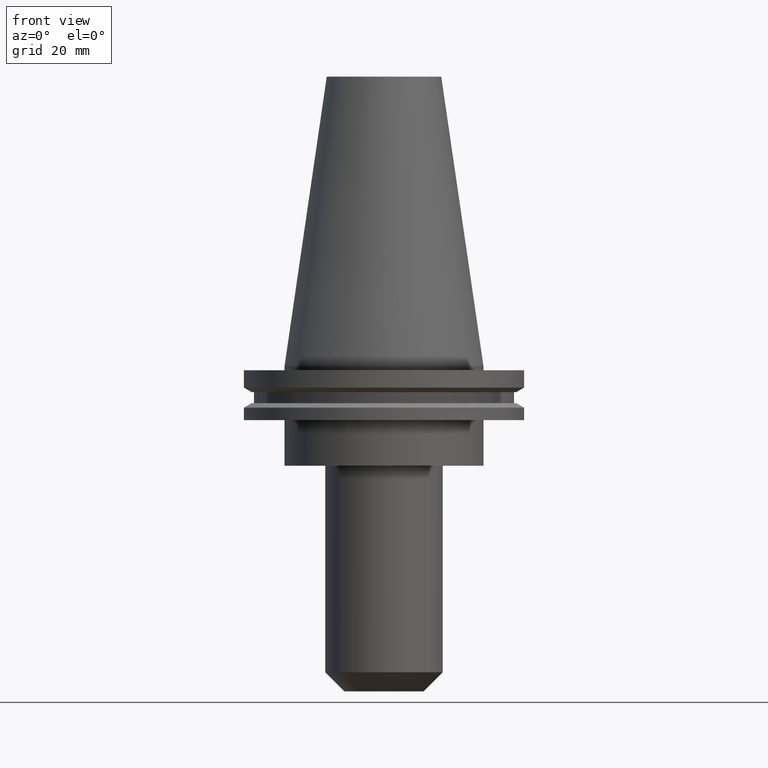
[diagram: clean part render]
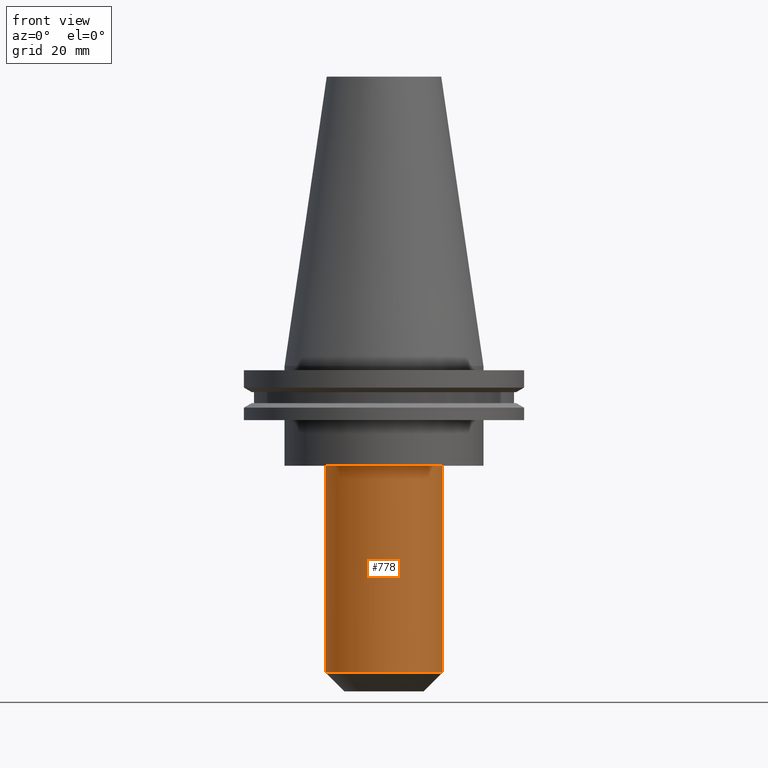
[diagram: same view with one face highlighted and labeled with its STEP entity id]
A machine part, front view. The second image highlights one B-rep face of the part: STEP entity #778.
In plain terms, the highlighted cylindrical surface (partial cylindrical patch) has radius 20.65 mm, axis along (-0, -0, 1).
Its self-contained STEP definition (entity closure, byte-faithful):
#15 = CARTESIAN_POINT ( 'NONE',  ( 20.64999999999999147, 0.000000000000000000, 0.000000000000000000 ) ) ;
#51 = CIRCLE ( 'NONE', #606, 20.64999999999999503 ) ;
#68 = EDGE_LOOP ( 'NONE', ( #462, #628, #110, #370 ) ) ;
#77 = VECTOR ( 'NONE', #275, 1000.000000000000000 ) ;
#98 = CARTESIAN_POINT ( 'NONE',  ( -20.64999999999999147, 2.528895640239283334E-15, 0.000000000000000000 ) ) ;
#110 = ORIENTED_EDGE ( 'NONE', *, *, #662, .T. ) ;
#158 = DIRECTION ( 'NONE',  ( -0.000000000000000000, -0.000000000000000000, 1.000000000000000000 ) ) ;
#162 = LINE ( 'NONE', #98, #560 ) ;
#235 = CYLINDRICAL_SURFACE ( 'NONE', #259, 20.64999999999999147 ) ;
#259 = AXIS2_PLACEMENT_3D ( 'NONE', #499, #626, #309 ) ;
#275 = DIRECTION ( 'NONE',  ( -0.000000000000000000, -0.000000000000000000, 1.000000000000000000 ) ) ;
#297 = CARTESIAN_POINT ( 'NONE',  ( -20.64999999999999503, 2.528895640239283728E-15, -107.5999999999999943 ) ) ;
#300 = EDGE_CURVE ( 'NONE', #704, #571, #51, .T. ) ;
#309 = DIRECTION ( 'NONE',  ( 1.000000000000000000, 0.000000000000000000, 0.000000000000000000 ) ) ;
#358 = VERTEX_POINT ( 'NONE', #363 ) ;
#359 = DIRECTION ( 'NONE',  ( 0.000000000000000000, 0.000000000000000000, -1.000000000000000000 ) ) ;
#363 = CARTESIAN_POINT ( 'NONE',  ( 20.64999999999999147, 0.000000000000000000, -35.04999999999999716 ) ) ;
#370 = ORIENTED_EDGE ( 'NONE', *, *, #575, .T. ) ;
#380 = CARTESIAN_POINT ( 'NONE',  ( -20.64999999999999147, 2.528895640239283334E-15, -35.04999999999999716 ) ) ;
#420 = DIRECTION ( 'NONE',  ( 1.000000000000000000, 0.000000000000000000, 0.000000000000000000 ) ) ;
#431 = CARTESIAN_POINT ( 'NONE',  ( 0.000000000000000000, 0.000000000000000000, -107.5999999999999943 ) ) ;
#462 = ORIENTED_EDGE ( 'NONE', *, *, #674, .F. ) ;
#472 = CARTESIAN_POINT ( 'NONE',  ( 0.000000000000000000, 0.000000000000000000, -35.04999999999999716 ) ) ;
#493 = CIRCLE ( 'NONE', #735, 20.64999999999999147 ) ;
#499 = CARTESIAN_POINT ( 'NONE',  ( 0.000000000000000000, 0.000000000000000000, 0.000000000000000000 ) ) ;
#560 = VECTOR ( 'NONE', #615, 1000.000000000000000 ) ;
#571 = VERTEX_POINT ( 'NONE', #661 ) ;
#575 = EDGE_CURVE ( 'NONE', #358, #695, #493, .T. ) ;
#596 = LINE ( 'NONE', #15, #77 ) ;
#606 = AXIS2_PLACEMENT_3D ( 'NONE', #431, #158, #420 ) ;
#615 = DIRECTION ( 'NONE',  ( -0.000000000000000000, -0.000000000000000000, 1.000000000000000000 ) ) ;
#626 = DIRECTION ( 'NONE',  ( -0.000000000000000000, -0.000000000000000000, 1.000000000000000000 ) ) ;
#628 = ORIENTED_EDGE ( 'NONE', *, *, #300, .T. ) ;
#661 = CARTESIAN_POINT ( 'NONE',  ( 20.64999999999999503, 0.000000000000000000, -107.5999999999999943 ) ) ;
#662 = EDGE_CURVE ( 'NONE', #571, #358, #596, .T. ) ;
#674 = EDGE_CURVE ( 'NONE', #704, #695, #162, .T. ) ;
#695 = VERTEX_POINT ( 'NONE', #380 ) ;
#704 = VERTEX_POINT ( 'NONE', #297 ) ;
#732 = DIRECTION ( 'NONE',  ( 1.000000000000000000, 0.000000000000000000, 0.000000000000000000 ) ) ;
#735 = AXIS2_PLACEMENT_3D ( 'NONE', #472, #359, #732 ) ;
#778 = ADVANCED_FACE ( 'NONE', ( #829 ), #235, .T. ) ;
#829 = FACE_OUTER_BOUND ( 'NONE', #68, .T. ) ;